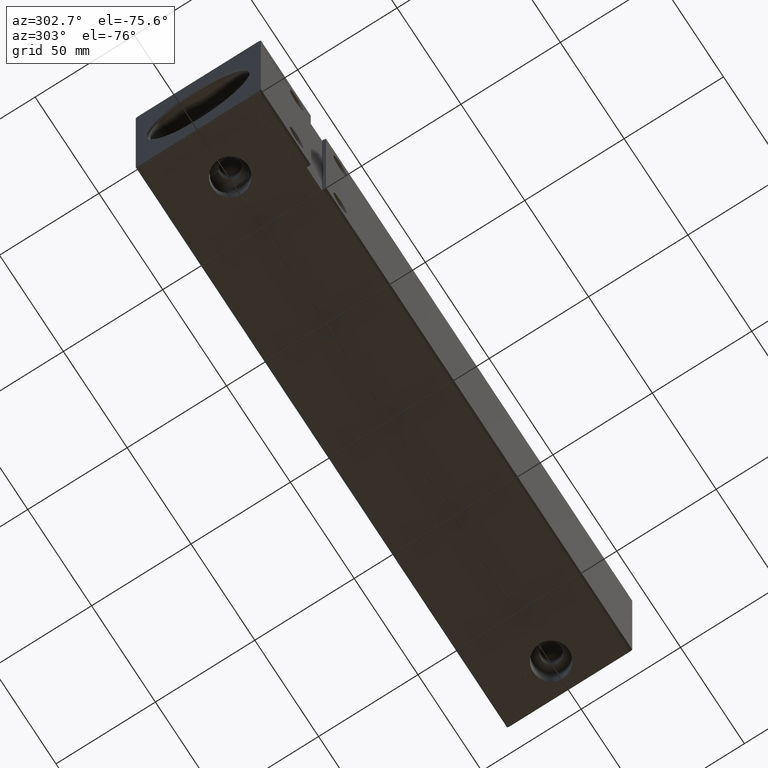
[diagram: clean part render]
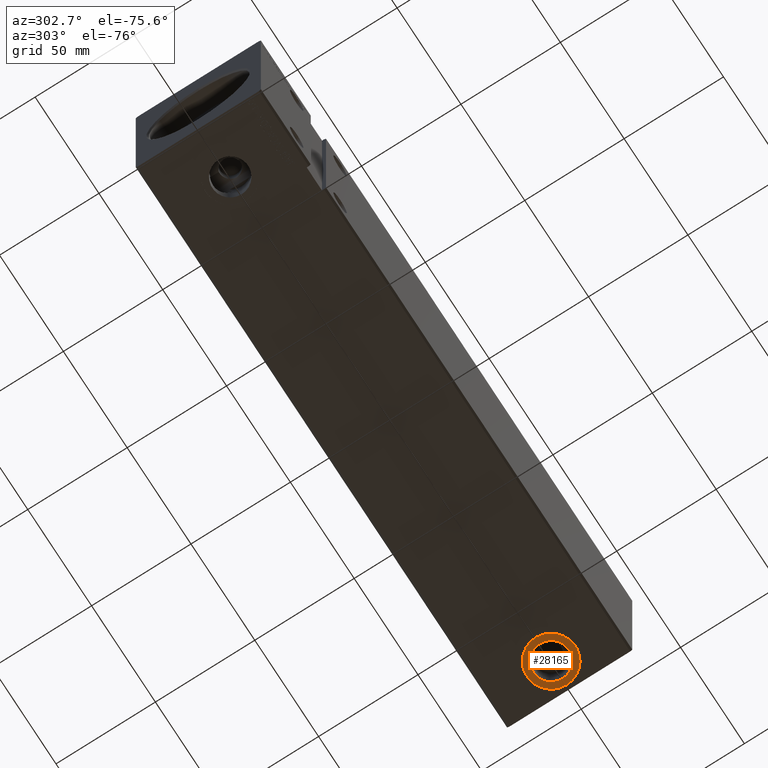
[diagram: same view with one face highlighted and labeled with its STEP entity id]
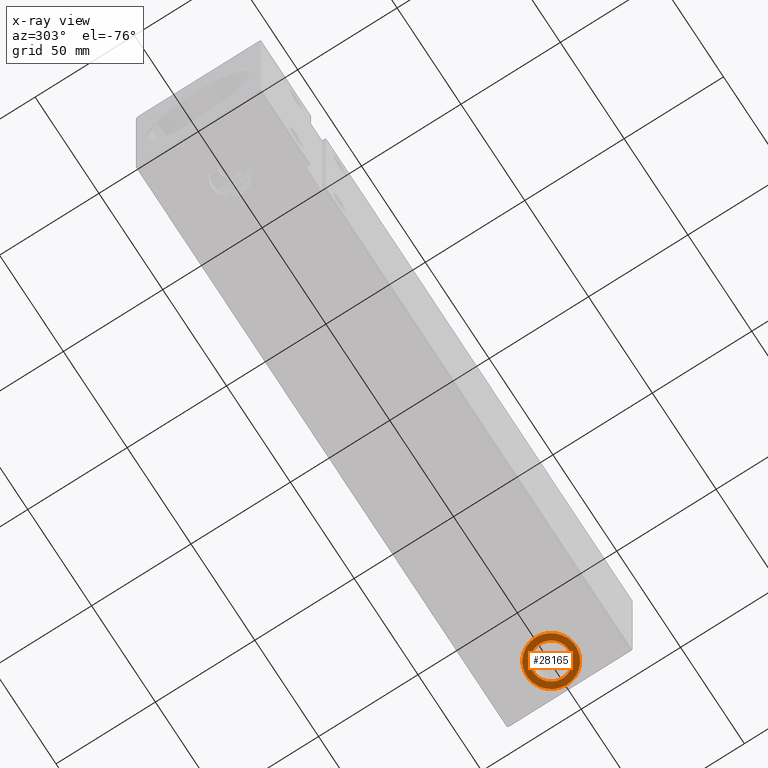
[diagram: x-ray of the same camera — body ghosted, the highlighted face saturated]
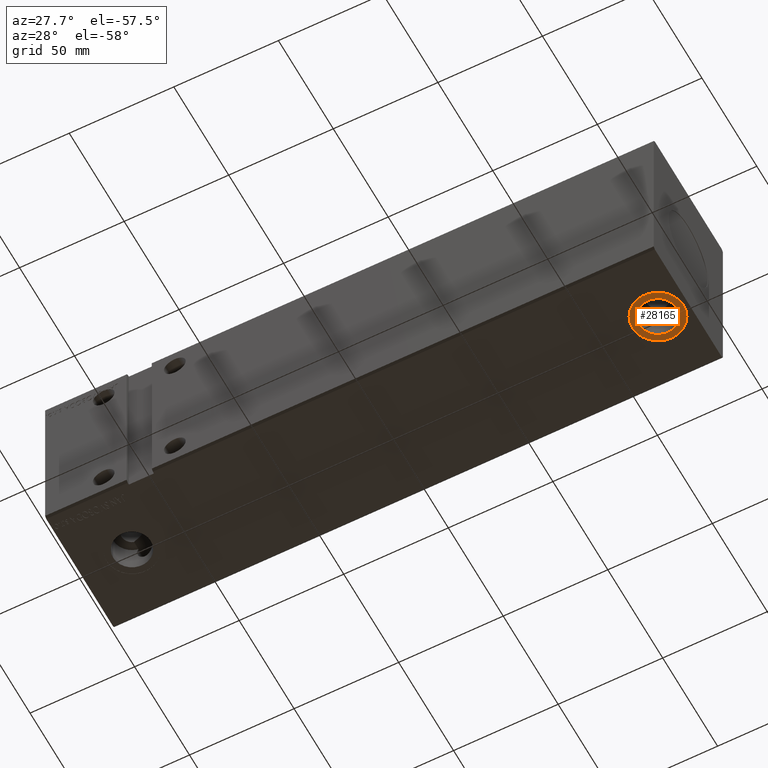
[diagram: same view with one face highlighted and labeled with its STEP entity id]
A machine part, auxiliary view. The second image highlights one B-rep face of the part: STEP entity #28165.
The next image is the same camera in x-ray: the body ghosted, the highlighted face saturated — about 0% of this face is hidden behind the body in this view.
A second angle (auxiliary view) of the same face is appended — the face is thin or edge-on in the first view.
In plain terms, the highlighted planar face has unit normal (0, 0, -1).
Its self-contained STEP definition (entity closure, byte-faithful):
#2120 = VERTEX_POINT ( 'NONE', #30062 ) ;
#2741 = CARTESIAN_POINT ( 'NONE',  ( 276.4999999999999432, -3.419751660726674152E-14, -42.40000000000000568 ) ) ;
#3073 = DIRECTION ( 'NONE',  ( -1.000000000000000000, 0.000000000000000000, 0.000000000000000000 ) ) ;
#3322 = CIRCLE ( 'NONE', #25798, 12.24999999999998224 ) ;
#3896 = ORIENTED_EDGE ( 'NONE', *, *, #25490, .F. ) ;
#4247 = DIRECTION ( 'NONE',  ( -1.000000000000000000, 0.000000000000000000, 0.000000000000000000 ) ) ;
#4366 = FACE_BOUND ( 'NONE', #36035, .T. ) ;
#6896 = AXIS2_PLACEMENT_3D ( 'NONE', #40945, #30251, #3073 ) ;
#7670 = CARTESIAN_POINT ( 'NONE',  ( 276.4999999999999432, -3.419751660726674152E-14, -42.40000000000000568 ) ) ;
#7863 = DIRECTION ( 'NONE',  ( -1.000000000000000000, 0.000000000000000000, -0.000000000000000000 ) ) ;
#8701 = VERTEX_POINT ( 'NONE', #21567 ) ;
#8752 = DIRECTION ( 'NONE',  ( -1.000000000000000000, 0.000000000000000000, 0.000000000000000000 ) ) ;
#13824 = EDGE_LOOP ( 'NONE', ( #14142, #40273 ) ) ;
#14142 = ORIENTED_EDGE ( 'NONE', *, *, #22595, .T. ) ;
#16834 = CARTESIAN_POINT ( 'NONE',  ( 276.4999999999999432, -3.419751660726674152E-14, -42.40000000000000568 ) ) ;
#16988 = PLANE ( 'NONE',  #35579 ) ;
#19514 = CIRCLE ( 'NONE', #36706, 9.000000000000007105 ) ;
#20363 = DIRECTION ( 'NONE',  ( 0.000000000000000000, 0.000000000000000000, -1.000000000000000000 ) ) ;
#21567 = CARTESIAN_POINT ( 'NONE',  ( 264.2500000000000000, -3.419751660726674152E-14, -42.40000000000000568 ) ) ;
#22595 = EDGE_CURVE ( 'NONE', #8701, #38018, #29381, .T. ) ;
#22977 = EDGE_CURVE ( 'NONE', #2120, #32006, #35325, .T. ) ;
#24476 = DIRECTION ( 'NONE',  ( 0.000000000000000000, 0.000000000000000000, -1.000000000000000000 ) ) ;
#25075 = CARTESIAN_POINT ( 'NONE',  ( 267.4999999999999432, -3.419751660726674152E-14, -42.40000000000000568 ) ) ;
#25490 = EDGE_CURVE ( 'NONE', #32006, #2120, #19514, .T. ) ;
#25798 = AXIS2_PLACEMENT_3D ( 'NONE', #16834, #36084, #38978 ) ;
#26159 = AXIS2_PLACEMENT_3D ( 'NONE', #29688, #20363, #4247 ) ;
#28165 = ADVANCED_FACE ( 'NONE', ( #4366, #32308 ), #16988, .T. ) ;
#29161 = EDGE_CURVE ( 'NONE', #38018, #8701, #3322, .T. ) ;
#29381 = CIRCLE ( 'NONE', #26159, 12.24999999999998224 ) ;
#29688 = CARTESIAN_POINT ( 'NONE',  ( 276.4999999999999432, -3.419751660726674152E-14, -42.40000000000000568 ) ) ;
#30062 = CARTESIAN_POINT ( 'NONE',  ( 285.5000000000000000, -3.309533448803413150E-14, -42.40000000000000568 ) ) ;
#30251 = DIRECTION ( 'NONE',  ( 0.000000000000000000, 0.000000000000000000, -1.000000000000000000 ) ) ;
#32006 = VERTEX_POINT ( 'NONE', #25075 ) ;
#32308 = FACE_OUTER_BOUND ( 'NONE', #13824, .T. ) ;
#33905 = CARTESIAN_POINT ( 'NONE',  ( 288.7499999999999432, -3.269732427831123596E-14, -42.40000000000000568 ) ) ;
#35325 = CIRCLE ( 'NONE', #6896, 9.000000000000007105 ) ;
#35579 = AXIS2_PLACEMENT_3D ( 'NONE', #7670, #36037, #7863 ) ;
#36035 = EDGE_LOOP ( 'NONE', ( #3896, #37044 ) ) ;
#36037 = DIRECTION ( 'NONE',  ( 0.000000000000000000, 0.000000000000000000, -1.000000000000000000 ) ) ;
#36084 = DIRECTION ( 'NONE',  ( 0.000000000000000000, 0.000000000000000000, -1.000000000000000000 ) ) ;
#36706 = AXIS2_PLACEMENT_3D ( 'NONE', #2741, #24476, #8752 ) ;
#37044 = ORIENTED_EDGE ( 'NONE', *, *, #22977, .F. ) ;
#38018 = VERTEX_POINT ( 'NONE', #33905 ) ;
#38978 = DIRECTION ( 'NONE',  ( -1.000000000000000000, 0.000000000000000000, 0.000000000000000000 ) ) ;
#40273 = ORIENTED_EDGE ( 'NONE', *, *, #29161, .T. ) ;
#40945 = CARTESIAN_POINT ( 'NONE',  ( 276.4999999999999432, -3.419751660726674152E-14, -42.40000000000000568 ) ) ;